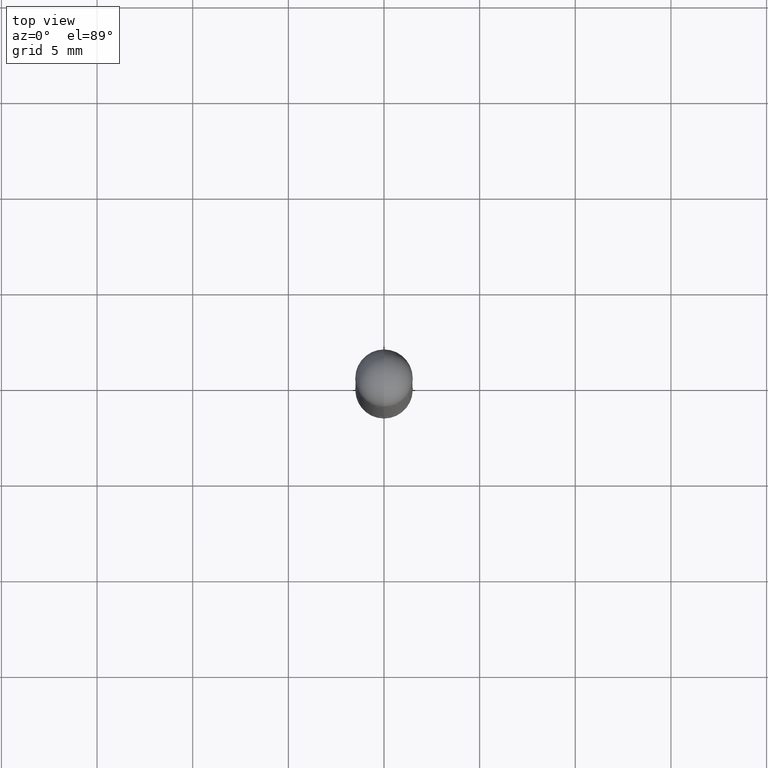
[diagram: clean part render]
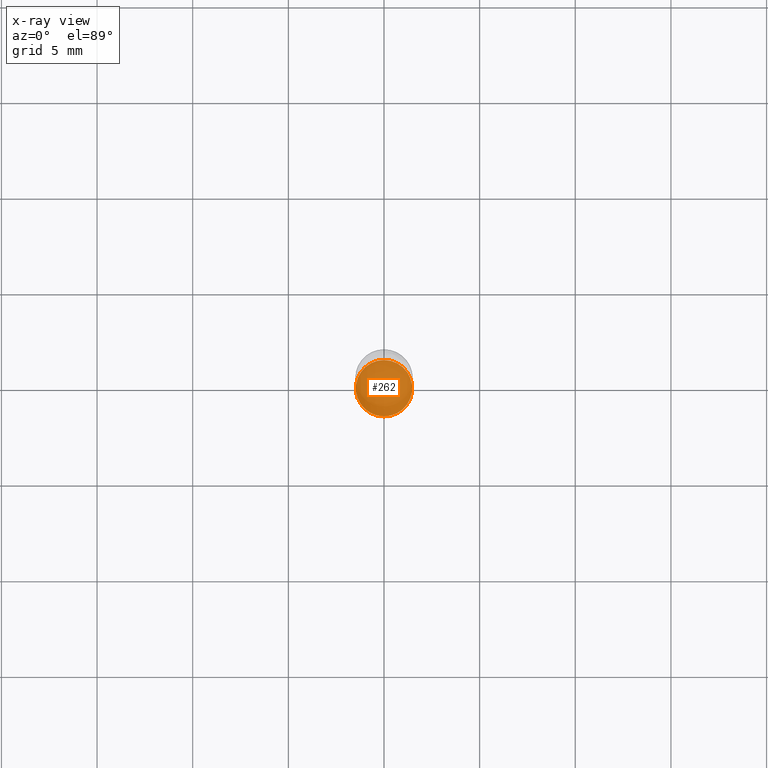
[diagram: x-ray — body ghosted, one internal face saturated and labeled with its STEP entity id]
A machine part, top view, then the same camera in x-ray: the body is ghosted and one INTERNAL B-rep face — a face not visible from any outside direction — is saturated and labeled: STEP entity #262.
In plain terms, the highlighted planar face has unit normal (-0, 0, 1).
Its self-contained STEP definition (entity closure, byte-faithful):
#28 = VERTEX_POINT ( 'NONE', #230 ) ;
#51 = DIRECTION ( 'NONE',  ( -2.436217411608901481E-29, 3.504729862432993051E-15, 1.000000000000000000 ) ) ;
#111 = CARTESIAN_POINT ( 'NONE',  ( 3.069390316886054826E-29, -4.415609153679327857E-15, -1.259899999999999798 ) ) ;
#152 = ORIENTED_EDGE ( 'NONE', *, *, #500, .F. ) ;
#218 = PLANE ( 'NONE',  #468 ) ;
#230 = CARTESIAN_POINT ( 'NONE',  ( -4.053609834396572528E-16, -0.05805000000000444527, -1.259899999999999576 ) ) ;
#237 = VERTEX_POINT ( 'NONE', #548 ) ;
#238 = CIRCLE ( 'NONE', #319, 0.05805000000000003213 ) ;
#262 = ADVANCED_FACE ( 'NONE', ( #336 ), #218, .F. ) ;
#276 = CARTESIAN_POINT ( 'NONE',  ( 3.069390316886054826E-29, -4.415609153679327857E-15, -1.259899999999999798 ) ) ;
#277 = AXIS2_PLACEMENT_3D ( 'NONE', #276, #482, #545 ) ;
#319 = AXIS2_PLACEMENT_3D ( 'NONE', #111, #51, #490 ) ;
#329 = EDGE_CURVE ( 'NONE', #237, #28, #680, .T. ) ;
#336 = FACE_OUTER_BOUND ( 'NONE', #708, .T. ) ;
#468 = AXIS2_PLACEMENT_3D ( 'NONE', #473, #795, #663 ) ;
#473 = CARTESIAN_POINT ( 'NONE',  ( 3.069390316886054826E-29, -4.415609153679327857E-15, -1.259899999999999798 ) ) ;
#482 = DIRECTION ( 'NONE',  ( -2.436217411608901481E-29, 3.504729862432993051E-15, 1.000000000000000000 ) ) ;
#484 = ORIENTED_EDGE ( 'NONE', *, *, #329, .F. ) ;
#490 = DIRECTION ( 'NONE',  ( -6.982962677686265922E-15, -1.000000000000000000, 4.706025828879003837E-15 ) ) ;
#500 = EDGE_CURVE ( 'NONE', #28, #237, #238, .T. ) ;
#545 = DIRECTION ( 'NONE',  ( -6.982962677686265922E-15, -1.000000000000000000, 4.706025828879003837E-15 ) ) ;
#548 = CARTESIAN_POINT ( 'NONE',  ( 4.160227717875701489E-16, 0.05804999999999561899, -1.259900000000000020 ) ) ;
#663 = DIRECTION ( 'NONE',  ( -6.982962677686265922E-15, -1.000000000000000000, 3.504729862432993051E-15 ) ) ;
#680 = CIRCLE ( 'NONE', #277, 0.05805000000000003213 ) ;
#708 = EDGE_LOOP ( 'NONE', ( #152, #484 ) ) ;
#795 = DIRECTION ( 'NONE',  ( -2.436217411608901201E-29, 3.504729862432993051E-15, 1.000000000000000000 ) ) ;